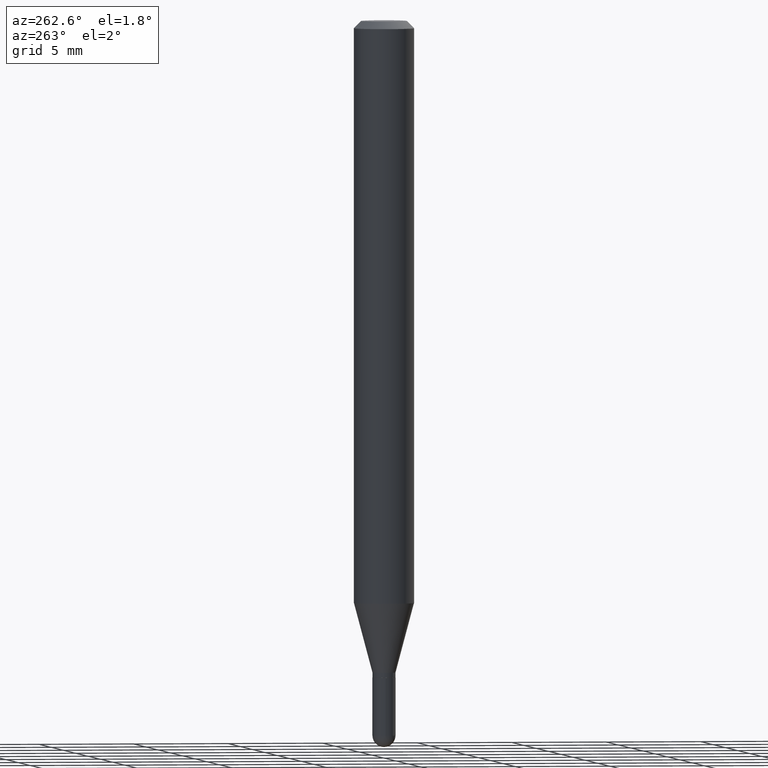
[diagram: clean part render]
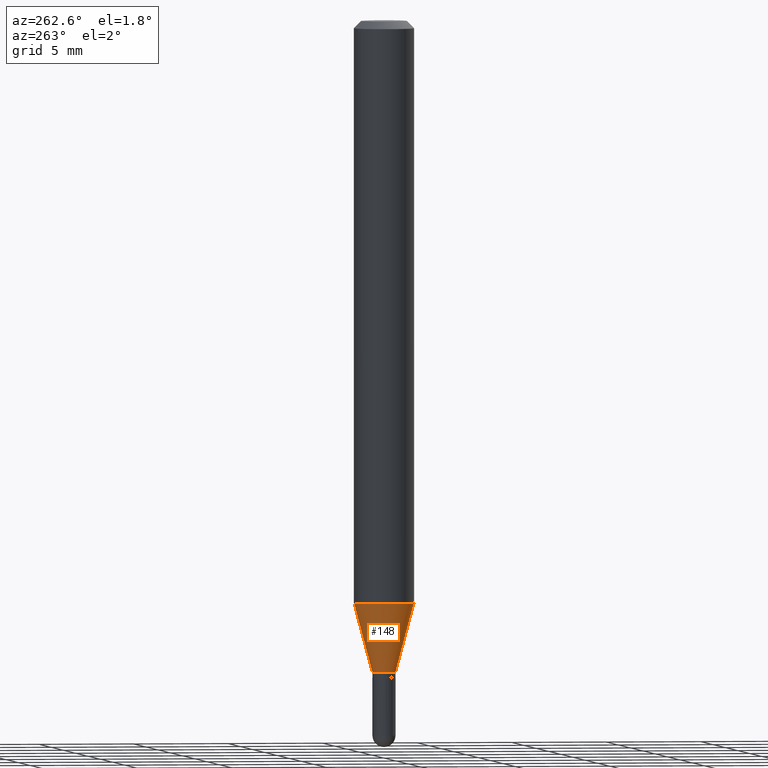
[diagram: same view with one face highlighted and labeled with its STEP entity id]
A machine part, auxiliary view. The second image highlights one B-rep face of the part: STEP entity #148.
In plain terms, the highlighted conical surface has half-angle 15 deg.
Its self-contained STEP definition (entity closure, byte-faithful):
#8 = CARTESIAN_POINT ( 'NONE',  ( -1.675911042644369543E-16, -0.02400000000000462527, -1.346000000000000085 ) ) ;
#43 = CONICAL_SURFACE ( 'NONE', #172, 0.02399999999999992764, 0.2617993877991505181 ) ;
#64 = DIRECTION ( 'NONE',  ( 1.839019923739601893E-15, 0.2588190451025252359, 0.9659258262890670910 ) ) ;
#99 = CARTESIAN_POINT ( 'NONE',  ( 3.291612358968501825E-29, -4.699517634189492675E-15, -1.346000000000000085 ) ) ;
#116 = VECTOR ( 'NONE', #64, 39.37007874015748854 ) ;
#121 = EDGE_CURVE ( 'NONE', #132, #506, #445, .T. ) ;
#123 = AXIS2_PLACEMENT_3D ( 'NONE', #259, #134, #346 ) ;
#132 = VERTEX_POINT ( 'NONE', #289 ) ;
#134 = DIRECTION ( 'NONE',  ( -2.445477235489228020E-29, 3.491469267599920324E-15, 1.000000000000000000 ) ) ;
#148 = ADVANCED_FACE ( 'NONE', ( #179 ), #43, .T. ) ;
#158 = DIRECTION ( 'NONE',  ( -1.807323732225331717E-15, -0.2588190451025184080, 0.9659258262890689783 ) ) ;
#172 = AXIS2_PLACEMENT_3D ( 'NONE', #99, #214, #260 ) ;
#179 = FACE_OUTER_BOUND ( 'NONE', #237, .T. ) ;
#207 = EDGE_CURVE ( 'NONE', #443, #132, #291, .T. ) ;
#213 = EDGE_CURVE ( 'NONE', #474, #506, #296, .T. ) ;
#214 = DIRECTION ( 'NONE',  ( -2.445477235489228020E-29, 3.491469267599920324E-15, 1.000000000000000000 ) ) ;
#237 = EDGE_LOOP ( 'NONE', ( #303, #467, #397, #252 ) ) ;
#246 = EDGE_CURVE ( 'NONE', #443, #474, #344, .T. ) ;
#252 = ORIENTED_EDGE ( 'NONE', *, *, #213, .F. ) ;
#254 = DIRECTION ( 'NONE',  ( -2.445477235489228020E-29, 3.491469267599920324E-15, 1.000000000000000000 ) ) ;
#257 = CARTESIAN_POINT ( 'NONE',  ( 3.291612358968501825E-29, -4.699517634189492675E-15, -1.346000000000000085 ) ) ;
#259 = CARTESIAN_POINT ( 'NONE',  ( 2.940236515241945390E-29, -4.197849517249188631E-15, -1.202316043908598697 ) ) ;
#260 = DIRECTION ( 'NONE',  ( -6.982962677686265133E-15, -1.000000000000000000, 0.000000000000000000 ) ) ;
#289 = CARTESIAN_POINT ( 'NONE',  ( -1.675911042644369543E-16, -0.02400000000000462527, -1.346000000000000085 ) ) ;
#291 = CIRCLE ( 'NONE', #462, 0.02399999999999992764 ) ;
#296 = CIRCLE ( 'NONE', #123, 0.06250000000000000000 ) ;
#303 = ORIENTED_EDGE ( 'NONE', *, *, #246, .F. ) ;
#324 = CARTESIAN_POINT ( 'NONE',  ( -4.364351673553623829E-16, -0.06250000000000421885, -1.202316043908598253 ) ) ;
#326 = VECTOR ( 'NONE', #158, 39.37007874015748854 ) ;
#344 = LINE ( 'NONE', #463, #116 ) ;
#346 = DIRECTION ( 'NONE',  ( -6.982962677686265922E-15, -1.000000000000000000, 4.370956789862821150E-15 ) ) ;
#362 = CARTESIAN_POINT ( 'NONE',  ( 4.440892098500918040E-16, 0.06249999999999577421, -1.202316043908598919 ) ) ;
#397 = ORIENTED_EDGE ( 'NONE', *, *, #121, .T. ) ;
#426 = DIRECTION ( 'NONE',  ( -6.982962677686265133E-15, -1.000000000000000000, 0.000000000000000000 ) ) ;
#429 = CARTESIAN_POINT ( 'NONE',  ( 3.073097332162742703E-16, 0.02399999999999522307, -1.346000000000000085 ) ) ;
#443 = VERTEX_POINT ( 'NONE', #429 ) ;
#445 = LINE ( 'NONE', #8, #326 ) ;
#462 = AXIS2_PLACEMENT_3D ( 'NONE', #257, #254, #426 ) ;
#463 = CARTESIAN_POINT ( 'NONE',  ( 1.705302565824563915E-16, 0.02399999999999522654, -1.346000000000000085 ) ) ;
#467 = ORIENTED_EDGE ( 'NONE', *, *, #207, .T. ) ;
#474 = VERTEX_POINT ( 'NONE', #362 ) ;
#506 = VERTEX_POINT ( 'NONE', #324 ) ;